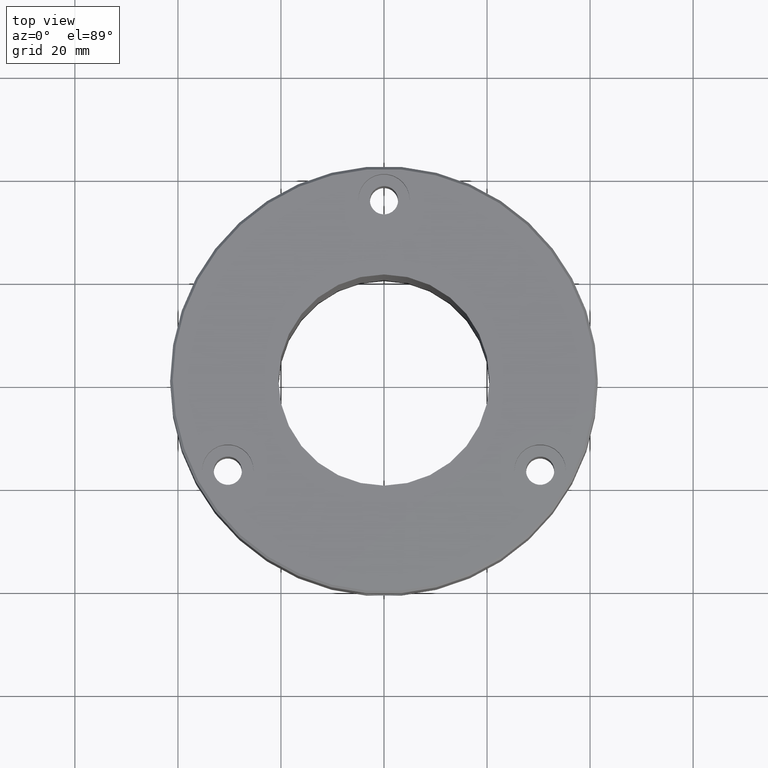
[diagram: clean part render]
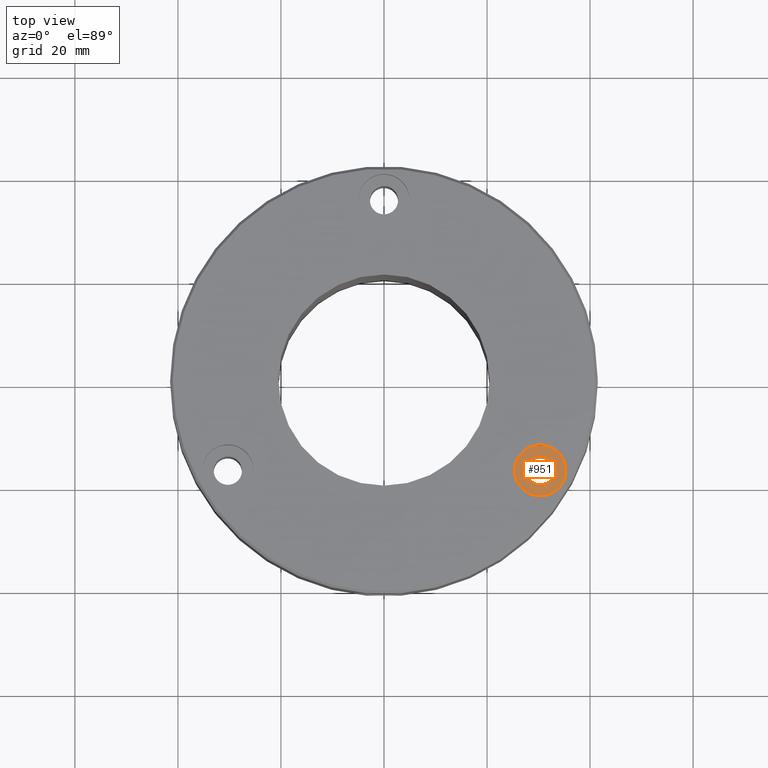
[diagram: same view with one face highlighted and labeled with its STEP entity id]
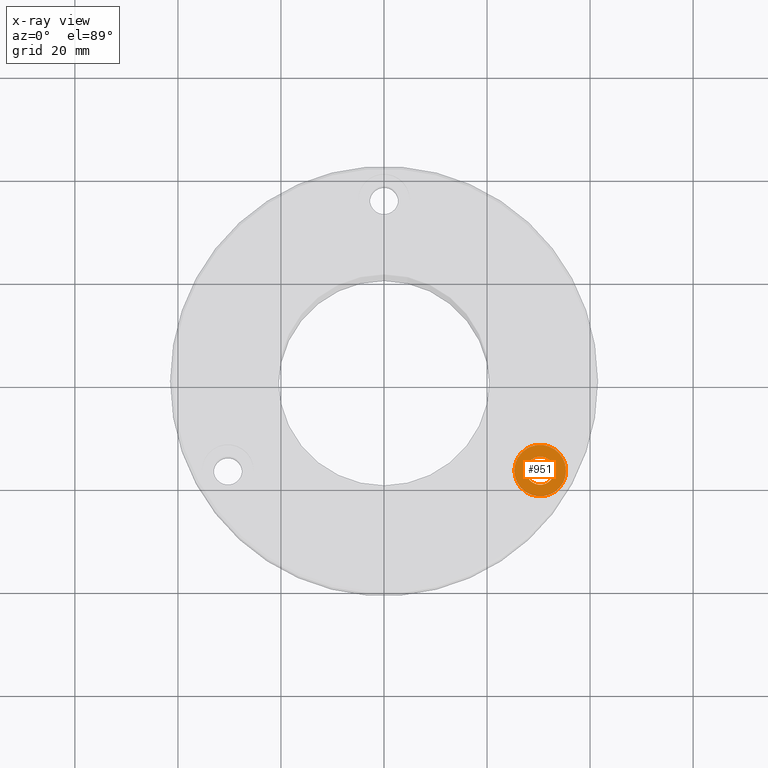
[diagram: x-ray of the same camera — body ghosted, the highlighted face saturated]
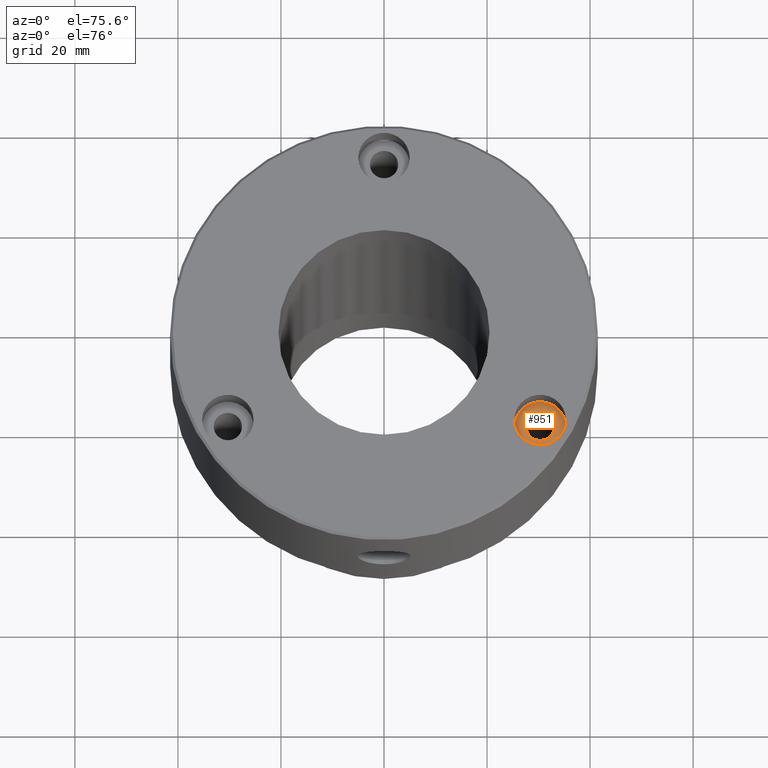
[diagram: same view with one face highlighted and labeled with its STEP entity id]
A machine part, top view. The second image highlights one B-rep face of the part: STEP entity #951.
The next image is the same camera in x-ray: the body ghosted, the highlighted face saturated — about 0% of this face is hidden behind the body in this view.
A second angle (auxiliary view) of the same face is appended — the face is thin or edge-on in the first view.
In plain terms, the highlighted planar face has unit normal (0, 0, -1).
Its self-contained STEP definition (entity closure, byte-faithful):
#4 = ORIENTED_EDGE ( 'NONE', *, *, #95, .F. ) ;
#28 = CIRCLE ( 'NONE', #450, 4.999999999999997335 ) ;
#48 = CIRCLE ( 'NONE', #300, 2.750000000000009326 ) ;
#95 = EDGE_CURVE ( 'NONE', #471, #593, #493, .T. ) ;
#147 = DIRECTION ( 'NONE',  ( 1.000000000000000000, 0.000000000000000000, 0.000000000000000000 ) ) ;
#171 = DIRECTION ( 'NONE',  ( 1.000000000000000000, 0.000000000000000000, 0.000000000000000000 ) ) ;
#200 = EDGE_CURVE ( 'NONE', #701, #362, #28, .T. ) ;
#238 = CARTESIAN_POINT ( 'NONE',  ( 30.31088913245528360, -17.50000000000013856, -5.400000000000000355 ) ) ;
#256 = CIRCLE ( 'NONE', #414, 4.999999999999997335 ) ;
#271 = DIRECTION ( 'NONE',  ( -0.000000000000000000, -0.000000000000000000, 1.000000000000000000 ) ) ;
#300 = AXIS2_PLACEMENT_3D ( 'NONE', #238, #616, #147 ) ;
#362 = VERTEX_POINT ( 'NONE', #726 ) ;
#363 = CARTESIAN_POINT ( 'NONE',  ( 30.31088913245528360, -17.50000000000013856, -5.400000000000000355 ) ) ;
#390 = CARTESIAN_POINT ( 'NONE',  ( 27.56088913245527294, -17.50000000000013856, -5.400000000000000355 ) ) ;
#402 = DIRECTION ( 'NONE',  ( -1.000000000000000000, 0.000000000000000000, -0.000000000000000000 ) ) ;
#406 = CARTESIAN_POINT ( 'NONE',  ( 33.06088913245529426, -17.50000000000013856, -5.400000000000000355 ) ) ;
#414 = AXIS2_PLACEMENT_3D ( 'NONE', #363, #271, #171 ) ;
#436 = DIRECTION ( 'NONE',  ( 1.000000000000000000, 0.000000000000000000, 0.000000000000000000 ) ) ;
#450 = AXIS2_PLACEMENT_3D ( 'NONE', #984, #606, #996 ) ;
#456 = EDGE_LOOP ( 'NONE', ( #1205, #4 ) ) ;
#471 = VERTEX_POINT ( 'NONE', #390 ) ;
#493 = CIRCLE ( 'NONE', #1059, 2.750000000000009326 ) ;
#501 = EDGE_CURVE ( 'NONE', #593, #471, #48, .T. ) ;
#513 = AXIS2_PLACEMENT_3D ( 'NONE', #406, #1088, #402 ) ;
#582 = ORIENTED_EDGE ( 'NONE', *, *, #1037, .T. ) ;
#593 = VERTEX_POINT ( 'NONE', #1192 ) ;
#606 = DIRECTION ( 'NONE',  ( -0.000000000000000000, -0.000000000000000000, 1.000000000000000000 ) ) ;
#616 = DIRECTION ( 'NONE',  ( -0.000000000000000000, -0.000000000000000000, 1.000000000000000000 ) ) ;
#661 = CARTESIAN_POINT ( 'NONE',  ( 25.31088913245528715, -17.50000000000013856, -5.400000000000000355 ) ) ;
#692 = FACE_OUTER_BOUND ( 'NONE', #813, .T. ) ;
#701 = VERTEX_POINT ( 'NONE', #661 ) ;
#708 = FACE_BOUND ( 'NONE', #456, .T. ) ;
#726 = CARTESIAN_POINT ( 'NONE',  ( 35.31088913245528005, -17.50000000000013856, -5.400000000000000355 ) ) ;
#813 = EDGE_LOOP ( 'NONE', ( #582, #1112 ) ) ;
#951 = ADVANCED_FACE ( 'NONE', ( #708, #692 ), #1074, .F. ) ;
#984 = CARTESIAN_POINT ( 'NONE',  ( 30.31088913245528360, -17.50000000000013856, -5.400000000000000355 ) ) ;
#996 = DIRECTION ( 'NONE',  ( 1.000000000000000000, 0.000000000000000000, 0.000000000000000000 ) ) ;
#1030 = CARTESIAN_POINT ( 'NONE',  ( 30.31088913245528360, -17.50000000000013856, -5.400000000000000355 ) ) ;
#1037 = EDGE_CURVE ( 'NONE', #362, #701, #256, .T. ) ;
#1059 = AXIS2_PLACEMENT_3D ( 'NONE', #1030, #1210, #436 ) ;
#1074 = PLANE ( 'NONE',  #513 ) ;
#1088 = DIRECTION ( 'NONE',  ( 0.000000000000000000, 0.000000000000000000, -1.000000000000000000 ) ) ;
#1112 = ORIENTED_EDGE ( 'NONE', *, *, #200, .T. ) ;
#1192 = CARTESIAN_POINT ( 'NONE',  ( 33.06088913245529426, -17.50000000000013856, -5.400000000000000355 ) ) ;
#1205 = ORIENTED_EDGE ( 'NONE', *, *, #501, .F. ) ;
#1210 = DIRECTION ( 'NONE',  ( -0.000000000000000000, -0.000000000000000000, 1.000000000000000000 ) ) ;